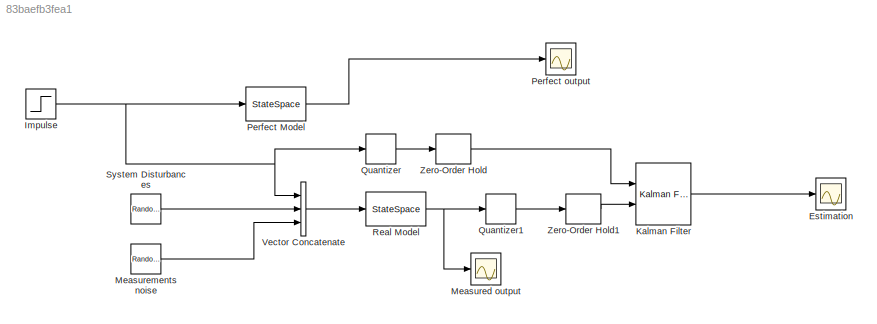
MODEL slx_83baefb3fea1
KIND model
CONFIG AbsTol = auto
CONFIG EnableMultiTasking = off
CONFIG FixedStep = auto
CONFIG MaxStep = auto
CONFIG MinStep = auto
CONFIG RelTol = 1e-3
CONFIG SampleTimeConstraint = Unconstrained
CONFIG SolverName = VariableStepAuto
CONFIG StartTime = 0.0
CONFIG StopTime = 50
BLOCK [Scope] Estimation
  Floating = off
  NumInputPorts = 1
  Ports = [1]
  ScopeSpecificationString = Simulink.scopes.TimeScopeBlockCfg('CurrentConfiguration', extmgr.ConfigurationSet(extmgr.Configuration('Core','General UI',true),extmgr.Configuration('Core','Source UI',true),extmgr.Configuration('Sources','WiredSimulink',true,'DataLoggingVariableName','ScopeData2'),extmgr.Configuration('Visuals','Time Domain',true,'SerializedDisplays',{struct('MinYLimReal','-11.0242','MaxYLimReal','11.14588','YLa...<+1426ch>
BLOCK [Step] Impulse
  After = 20
  SampleTime = 0
BLOCK [Reference] Kalman Filter  REF=ctrlSharedLib/Kalman Filter
  Ports = [2, 1]
  SourceBlock = ctrlSharedLib/Kalman Filter
  SourceProductBaseCode = CT,ID
  SourceType = ctrlKalmanFilter
BLOCK [Scope] Measured output
  Floating = off
  NumInputPorts = 1
  Ports = [1]
  ScopeSpecificationString = Simulink.scopes.TimeScopeBlockCfg('CurrentConfiguration', extmgr.ConfigurationSet(extmgr.Configuration('Core','General UI',true),extmgr.Configuration('Core','Source UI',true),extmgr.Configuration('Sources','WiredSimulink',true,'DataLoggingVariableName','ScopeData1'),extmgr.Configuration('Visuals','Time Domain',true,'SerializedDisplays',{struct('MinYLimReal','-11.09424','MaxYLimReal','11.20515','YL...<+1419ch>
BLOCK [RandomNumber] Measurements noise
  SampleTime = dt
  Seed = 0:1
  Variance = [Vn(1, 1) Vn(2, 2)]
BLOCK [StateSpace] Perfect Model
  A = sys.A
  B = sys.B
  C = sys.C
  ContinuousStateAttributes = 'perfectModel'
  D = sys.D
  InitialCondition = [0 -0]
  Ports = [1, 1]
BLOCK [Scope] Perfect output
  Floating = off
  NumInputPorts = 1
  Ports = [1]
  ScopeSpecificationString = Simulink.scopes.TimeScopeBlockCfg('CurrentConfiguration', extmgr.ConfigurationSet(extmgr.Configuration('Core','General UI',true),extmgr.Configuration('Core','Source UI',true),extmgr.Configuration('Sources','WiredSimulink',true),extmgr.Configuration('Visuals','Time Domain',true,'SerializedDisplays',{struct('MinYLimReal','-11.09241','MaxYLimReal','11.20306','YLabelReal','','MinYLimMag','0.00000','Ma...<+1414ch>
BLOCK [Quantizer] Quantizer
  QuantizationInterval = 0.1
BLOCK [Quantizer] Quantizer1
  QuantizationInterval = 0.1
BLOCK [StateSpace] Real Model
  A = sysReal.A
  B = sysReal.B
  C = sysReal.C
  D = sysReal.D
  InitialCondition = 0
  Ports = [1, 1]
BLOCK [RandomNumber] System Disturbances
  SampleTime = dt
  Seed = 0:1
  Variance = [Vd(1, 1) Vd(2, 2)]
BLOCK [Concatenate] Vector Concatenate
  NumInputs = 3
  Ports = [3, 1]
BLOCK [ZeroOrderHold] Zero-Order Hold
  SampleTime = -1
BLOCK [ZeroOrderHold] Zero-Order Hold1
  SampleTime = -1
NET Impulse:1 -> Perfect Model:1, Quantizer:1, Vector Concatenate:1
LINE Kalman Filter:1 -> Estimation:1
LINE Measurements noise:1 -> Vector Concatenate:3
LINE Perfect Model:1 -> Perfect output:1
LINE Quantizer1:1 -> Zero-Order Hold1:1
LINE Quantizer:1 -> Zero-Order Hold:1
NET Real Model:1 -> Measured output:1, Quantizer1:1
LINE System Disturbances:1 -> Vector Concatenate:2
LINE Vector Concatenate:1 -> Real Model:1
LINE Zero-Order Hold1:1 -> Kalman Filter:2
LINE Zero-Order Hold:1 -> Kalman Filter:1
note: NET lines group one-source signal fan-out (src -> all destinations, sorted); 1:1 wires keep LINE
